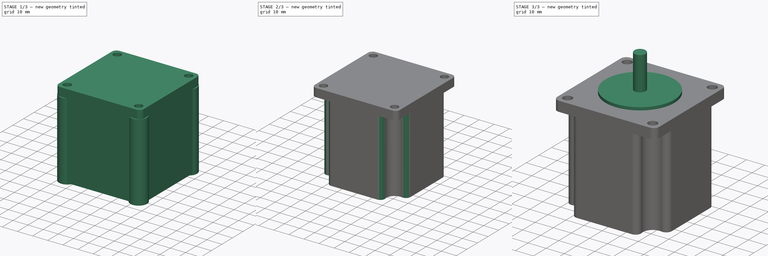
[diagram: build sequence overview — one tinted view per stage of 3, left to right]
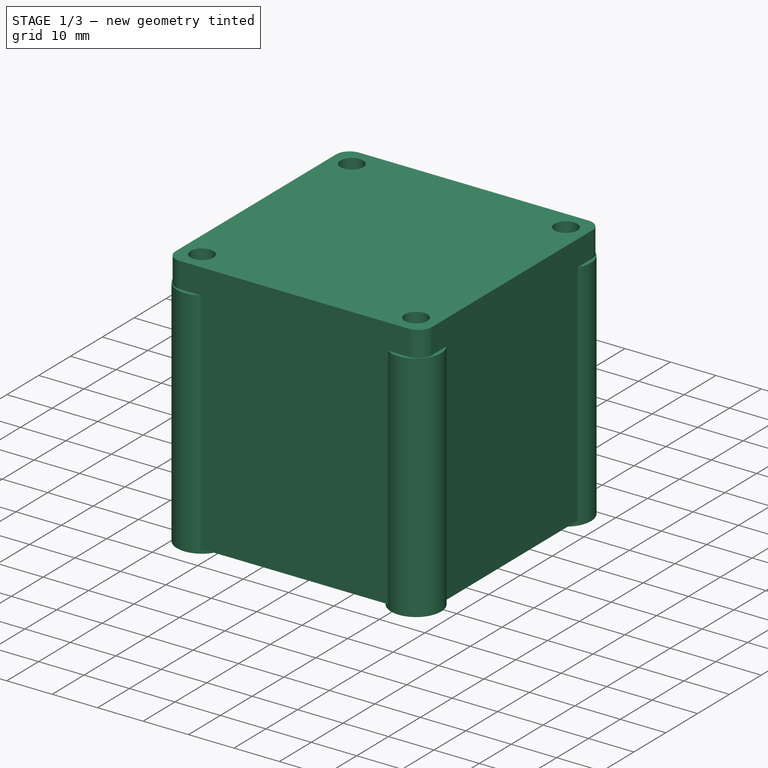
[diagram: stage 1 of 3 — iso view after this stage's code; geometry added in this stage tinted green]
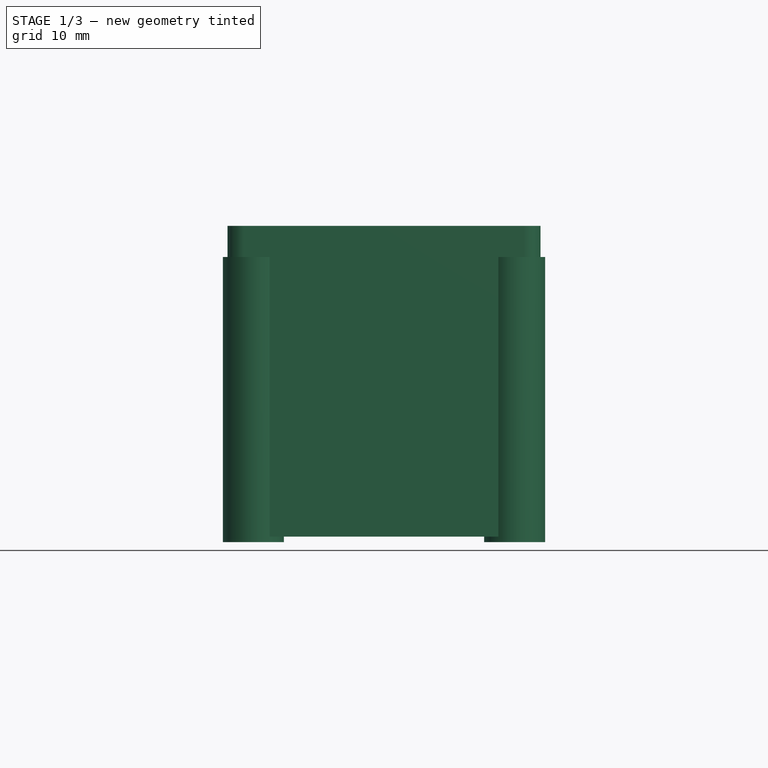
[diagram: stage 1 of 3 — front view after this stage's code; geometry added in this stage tinted green]
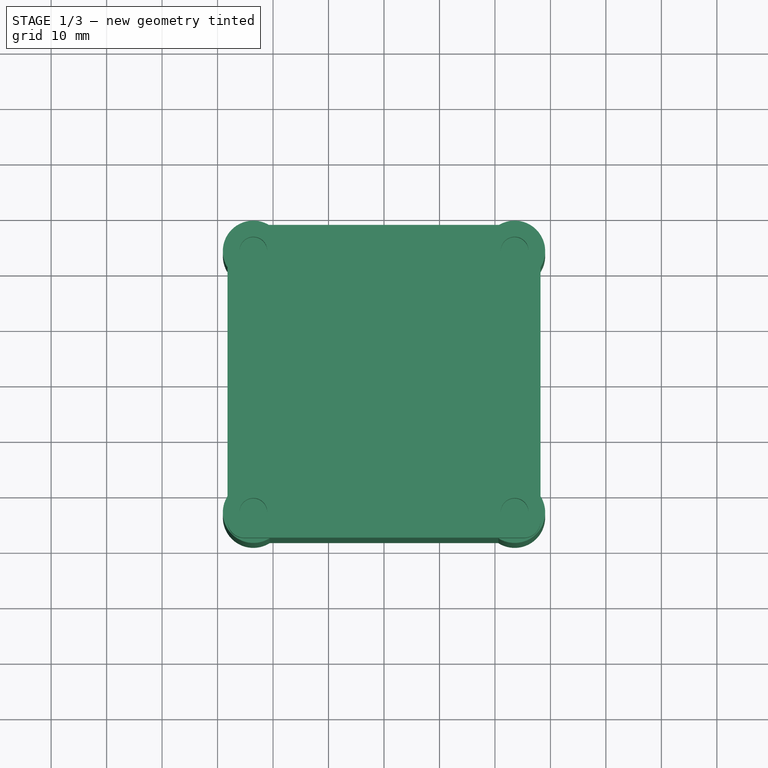
[diagram: stage 1 of 3 — top view after this stage's code; geometry added in this stage tinted green]
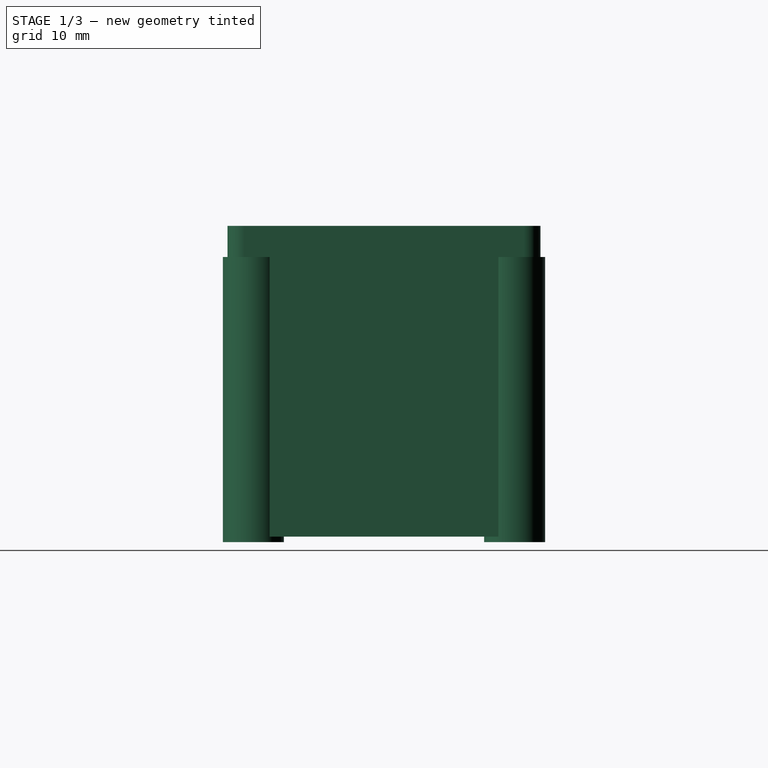
[diagram: stage 1 of 3 — right view after this stage's code; geometry added in this stage tinted green]
FCSTD DOCUMENT  (FreeCAD 0.15R4671 (Git))
Label: motor
License: All rights reserved
LicenseURL: http://en.wikipedia.org/wiki/All_rights_reserved
objects: Sketcher::SketchObject×6, PartDesign::Pad×4, PartDesign::Fillet×2, PartDesign::Pocket×1, Part::Cut×1
note: 19 computed .brp shape members not serialized (recipe doc carries the construction recipe); baked Part::Feature solids carry a one-line shape summary decoded from their .brp

FEATURE [Sketcher::SketchObject] Sketch
  sketch-geometry (8):
    g0: LineSegment StartX=-25.2 StartY=28.2 StartZ=0 EndX=25.2 EndY=28.2 EndZ=0
    g1: LineSegment StartX=28.2 StartY=25.2 StartZ=0 EndX=28.2 EndY=-25.2 EndZ=0
    g2: LineSegment StartX=25.2 StartY=-28.2 StartZ=0 EndX=-25.2 EndY=-28.2 EndZ=0
    g3: LineSegment StartX=-28.2 StartY=-25.2 StartZ=0 EndX=-28.2 EndY=25.2 EndZ=0
    g4: ArcOfCircle CenterX=25.2 CenterY=25.2 CenterZ=0 NormalX=0 NormalY=0 NormalZ=1 Radius=3 StartAngle=0 EndAngle=1.5708
    g5: ArcOfCircle CenterX=-25.2 CenterY=25.2 CenterZ=0 NormalX=0 NormalY=0 NormalZ=1 Radius=3 StartAngle=1.5708 EndAngle=3.14159
    g6: ArcOfCircle CenterX=25.2 CenterY=-25.2 CenterZ=0 NormalX=0 NormalY=0 NormalZ=1 Radius=3 StartAngle=4.71239 EndAngle=6.28319
    g7: ArcOfCircle CenterX=-25.2 CenterY=-25.2 CenterZ=0 NormalX=0 NormalY=0 NormalZ=1 Radius=3 StartAngle=3.14159 EndAngle=4.71239
  constraints (19):
    c: Horizontal(g0)
    c: Horizontal(g2)
    c: Vertical(g1)
    c: Tangent(g0,g4) = 1.5708
    c: Tangent(g1,g4) = 1.5708
    c: Radius(g4) = 3
    c: Tangent(g0,g5) = 1.5708
    c: Tangent(g3,g5) = 1.5708
    c: Tangent(g1,g6) = 1.5708
    c: Tangent(g2,g6) = 1.5708
    c: Tangent(g3,g7) = 1.5708
    c: Tangent(g2,g7) = 1.5708
    c: Equal(g5,g7)
    c: Equal(g7,g6)
    c: Equal(g6,g4)
    c: DistanceY(g0,g2) = -56.4
    c: DistanceX(g3,g1) = 56.4
    c: Symmetric(g3,g1,g-2)
    c: Symmetric(g0,g2,g-1)
FEATURE [PartDesign::Pad] Pad
  Length = 56
  Length2 = 100
  Sketch = -> Sketch
  Type = 0
FEATURE [Sketcher::SketchObject] Sketch001
  Placement = pos=(0,0,56) rot=(0,0,1;0rad)
  Support = -> Pad [Face10]
FEATURE [Sketcher::SketchObject] Sketch002
  Placement = pos=(0,0,56) rot=(0,0,1;0rad)
  Support = -> Pad [Face10]
  sketch-geometry (4):
    g0: Circle CenterX=-23.55 CenterY=23.55 CenterZ=0 NormalX=0 NormalY=0 NormalZ=1 Radius=2.5
    g1: Circle CenterX=-23.55 CenterY=-23.55 CenterZ=0 NormalX=0 NormalY=0 NormalZ=1 Radius=2.5
    g2: Circle CenterX=23.55 CenterY=23.55 CenterZ=0 NormalX=0 NormalY=0 NormalZ=1 Radius=2.5
    g3: Circle CenterX=23.55 CenterY=-23.55 CenterZ=0 NormalX=0 NormalY=0 NormalZ=1 Radius=2.5
  constraints (9):
    c: Radius(g0) = 2.5
    c: Equal(g0,g2)
    c: Equal(g2,g3)
    c: Equal(g3,g1)
    c: Symmetric(g2,g0,g-2)
    c: Symmetric(g3,g1,g-2)
    c: Symmetric(g3,g2,g-1)
    c: DistanceX(g0,g2) = 47.1
    c: DistanceY(g2,g3) = -47.1
FEATURE [PartDesign::Pocket] Pocket
  Length = 6
  Sketch = -> Sketch002
  Type = 0
FEATURE [Sketcher::SketchObject] Sketch003
  Placement = pos=(0,0,-1) rot=(0,0,1;0rad)
  sketch-geometry (4):
    g0: Circle CenterX=-23.55 CenterY=23.55 CenterZ=0 NormalX=0 NormalY=0 NormalZ=1 Radius=5.5
    g1: Circle CenterX=-23.55 CenterY=-23.55 CenterZ=0 NormalX=0 NormalY=0 NormalZ=1 Radius=5.5
    g2: Circle CenterX=23.55 CenterY=23.55 CenterZ=0 NormalX=0 NormalY=0 NormalZ=1 Radius=5.5
    g3: Circle CenterX=23.55 CenterY=-23.55 CenterZ=0 NormalX=0 NormalY=0 NormalZ=1 Radius=5.5
  constraints (9):
    c: Radius(g0) = 5.5
    c: Equal(g0,g2)
    c: Equal(g2,g3)
    c: Equal(g3,g1)
    c: Symmetric(g2,g0,g-2)
    c: Symmetric(g3,g1,g-2)
    c: Symmetric(g3,g2,g-1)
    c: DistanceX(g0,g2) = 47.1
    c: DistanceY(g2,g3) = -47.1
FEATURE [PartDesign::Pad] Pad001
  Length = 51.4
  Length2 = 100
  Placement = pos=(0,0,-1) rot=(0,0,1;0rad)
  Sketch = -> Sketch003
  Type = 0
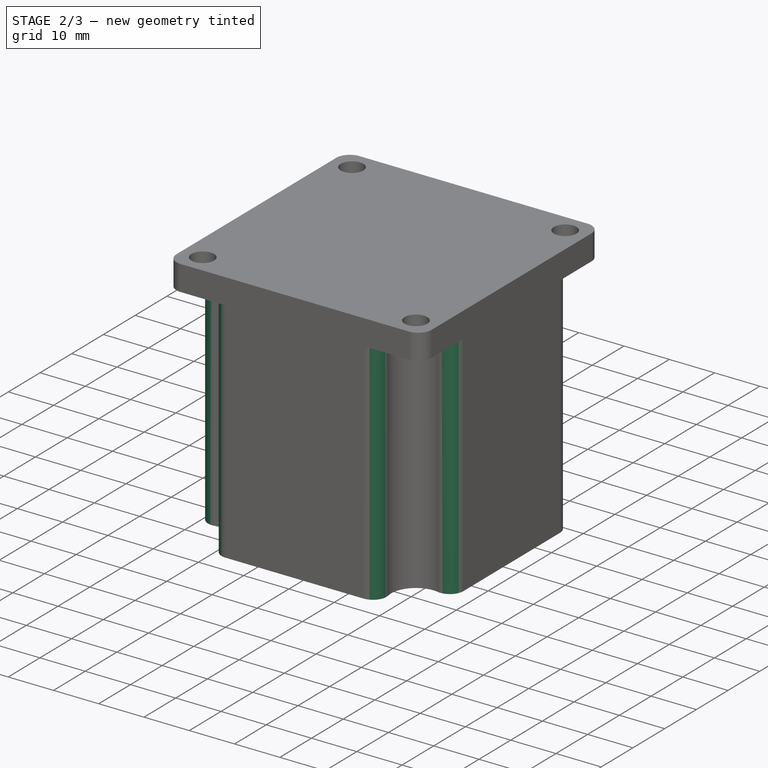
[diagram: stage 2 of 3 — iso view after this stage's code; geometry added in this stage tinted green]
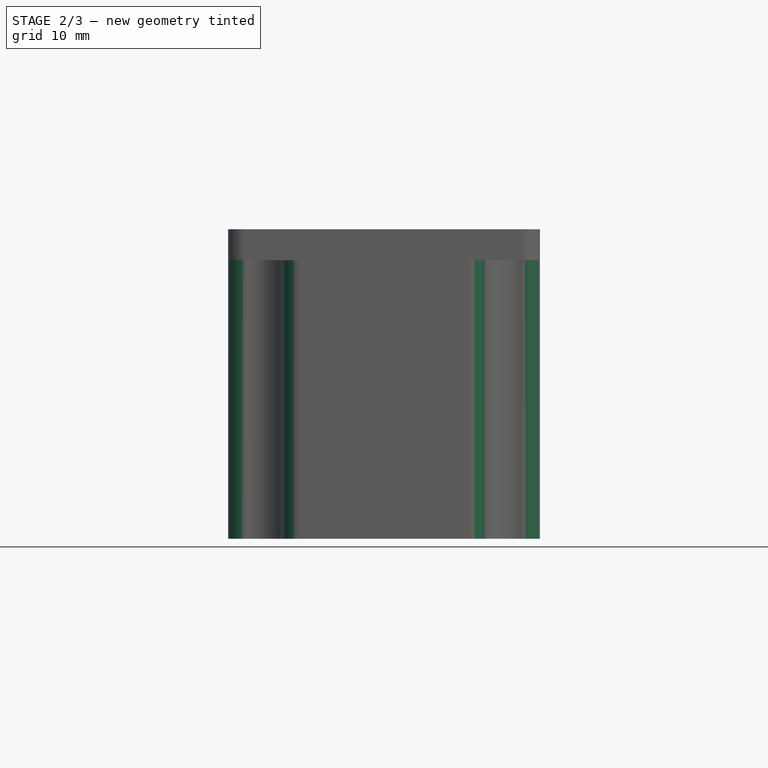
[diagram: stage 2 of 3 — front view after this stage's code; geometry added in this stage tinted green]
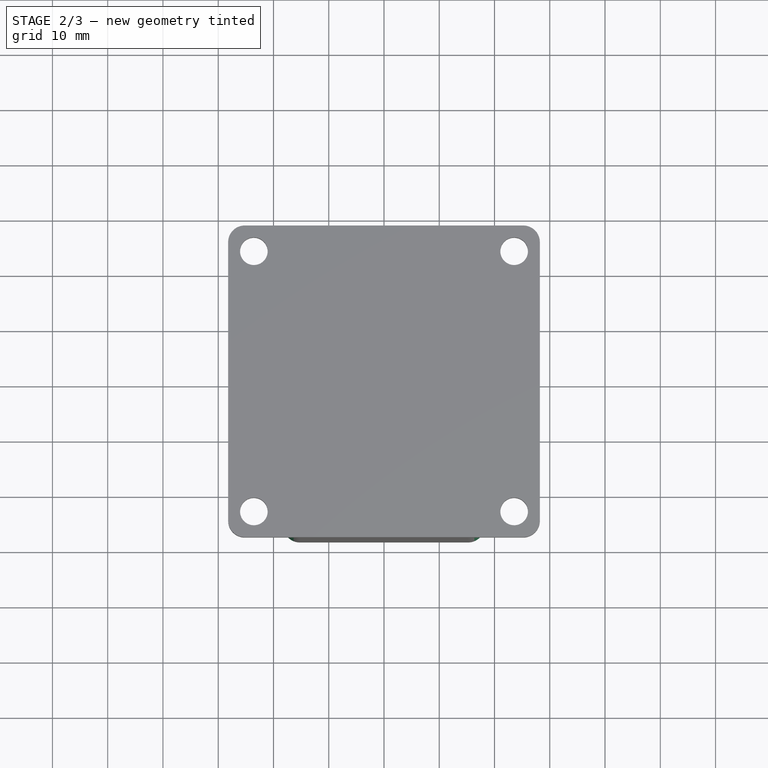
[diagram: stage 2 of 3 — top view after this stage's code; geometry added in this stage tinted green]
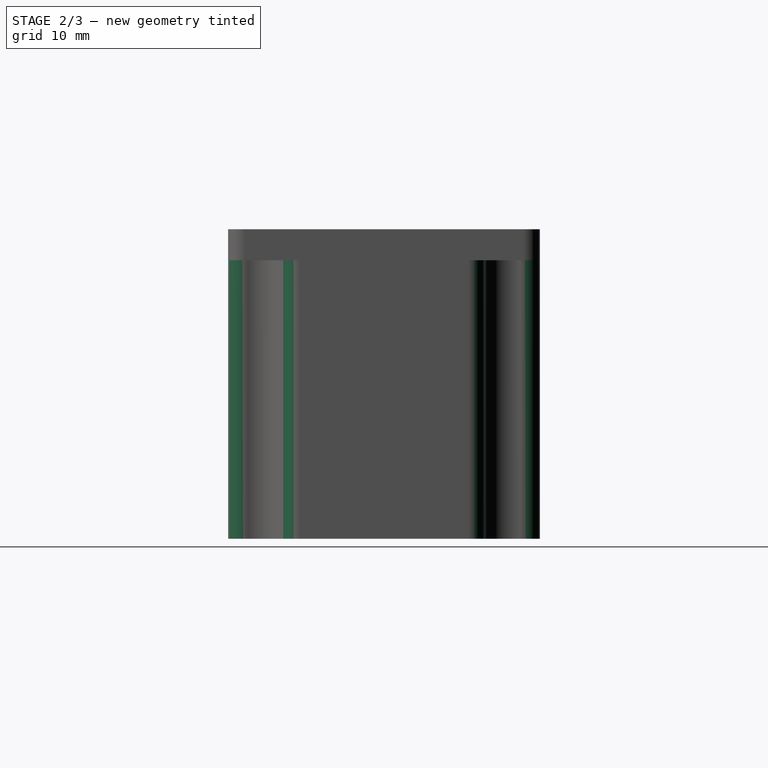
[diagram: stage 2 of 3 — right view after this stage's code; geometry added in this stage tinted green]
FEATURE [Part::Cut] Cut
  Base = -> Pocket
  Tool = -> Pad001
FEATURE [PartDesign::Fillet] Fillet
  Base = -> Cut [Edge53,Edge43,Edge44,Edge2,Edge4,Edge24,Edge47,Edge50]
  Radius = 3
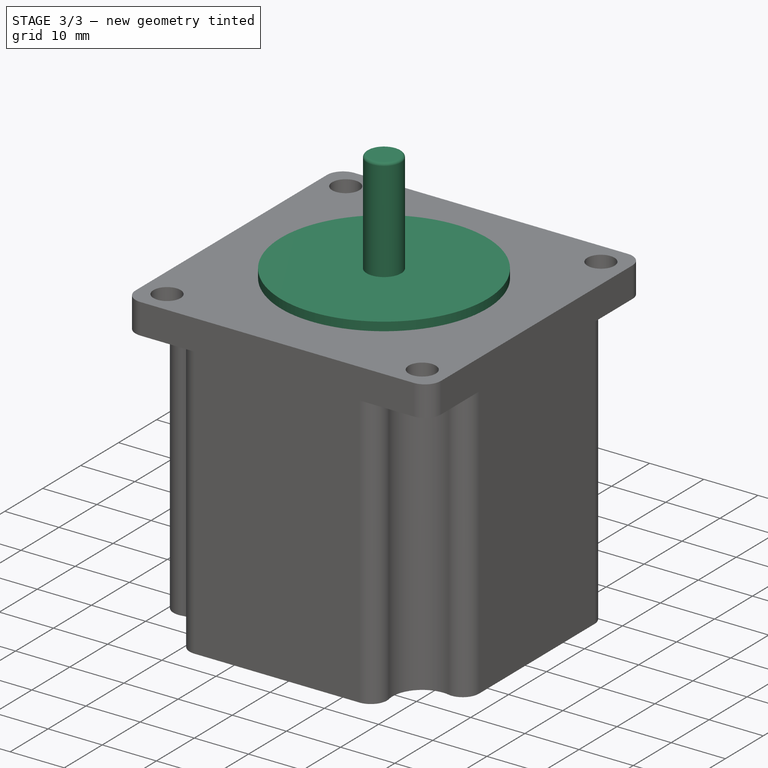
[diagram: stage 3 of 3 — iso view after this stage's code; geometry added in this stage tinted green]
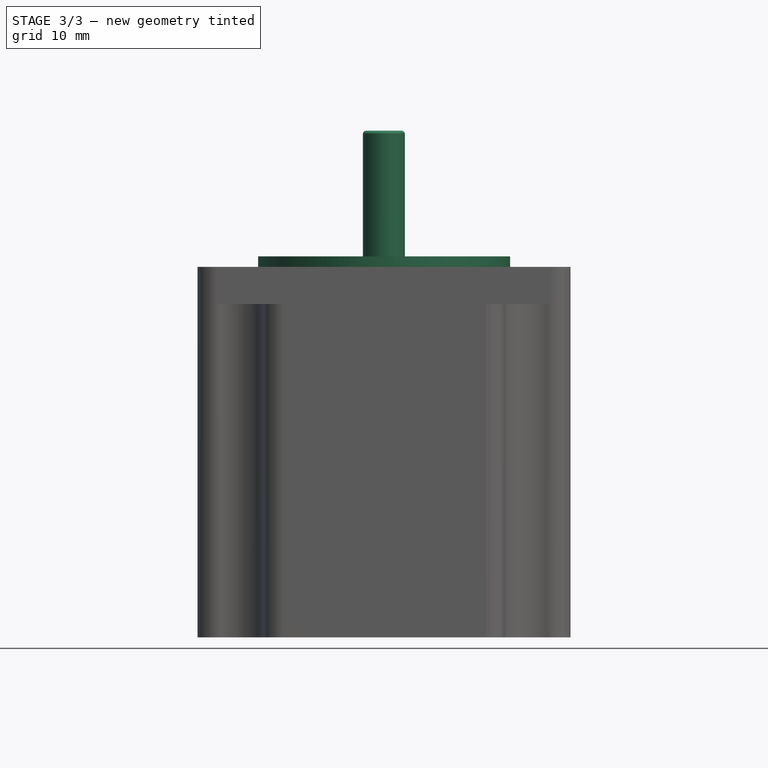
[diagram: stage 3 of 3 — front view after this stage's code; geometry added in this stage tinted green]
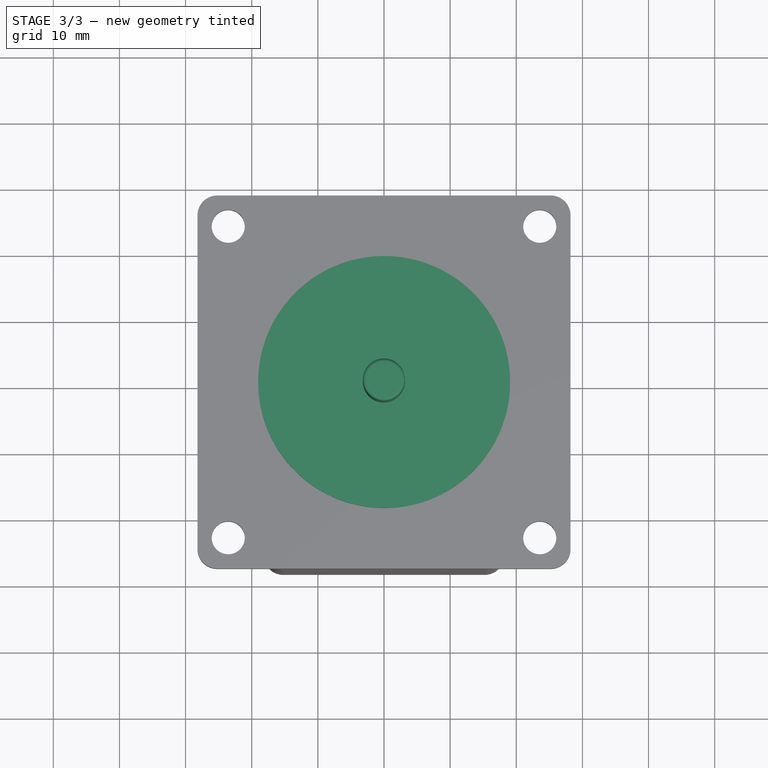
[diagram: stage 3 of 3 — top view after this stage's code; geometry added in this stage tinted green]
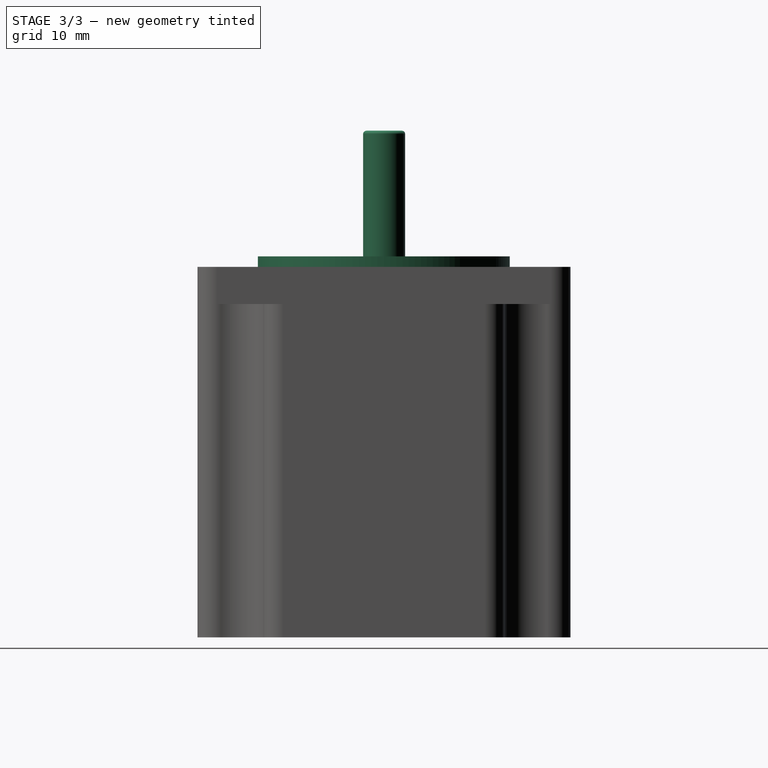
[diagram: stage 3 of 3 — right view after this stage's code; geometry added in this stage tinted green]
FEATURE [Sketcher::SketchObject] Sketch004
  Placement = pos=(0,0,56) rot=(0,0,1;0rad)
  Support = -> Fillet [Face9]
  sketch-geometry (1):
    g0: Circle CenterX=0.021046 CenterY=-0.026368 CenterZ=0 NormalX=0 NormalY=0 NormalZ=1 Radius=19.05
  constraints (1):
    c: Radius(g0) = 19.05
FEATURE [PartDesign::Pad] Pad002
  Length = 1.6
  Length2 = 100
  Sketch = -> Sketch004
  Type = 0
FEATURE [Sketcher::SketchObject] Sketch005
  Placement = pos=(0,0,57.6) rot=(0,0,1;0rad)
  Support = -> Pad002 [Face1]
  sketch-geometry (1):
    g0: Circle CenterX=-0.017815 CenterY=0.022992 CenterZ=0 NormalX=0 NormalY=0 NormalZ=1 Radius=3.175
  constraints (1):
    c: Radius(g0) = 3.175
FEATURE [PartDesign::Pad] Pad003
  Length = 19
  Length2 = 100
  Sketch = -> Sketch005
  Type = 0
FEATURE [PartDesign::Fillet] Fillet001
  Base = -> Pad003 [Edge66]
  Radius = 0.5
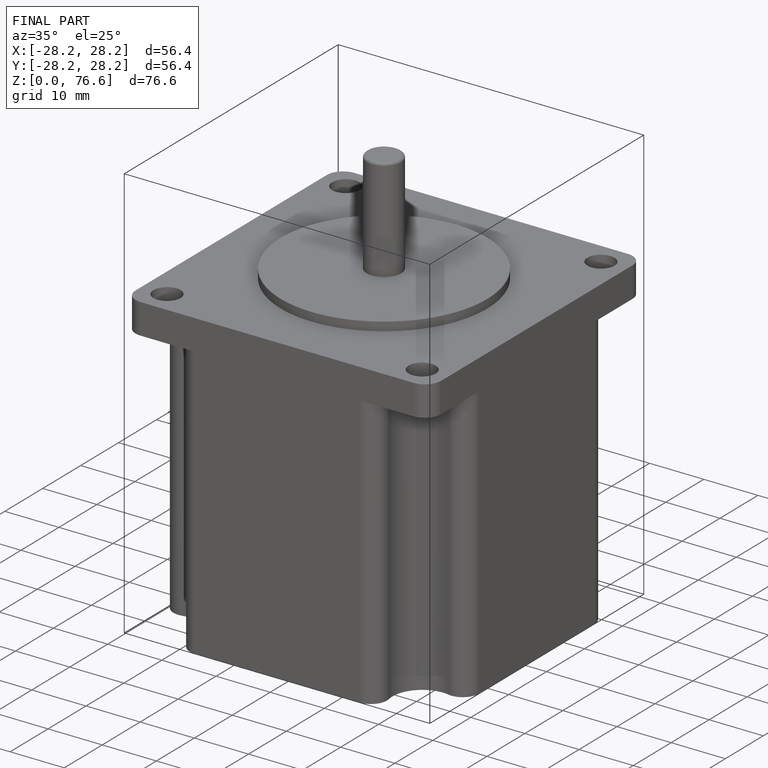
[diagram: finished part — iso view with bounding-box wireframe]
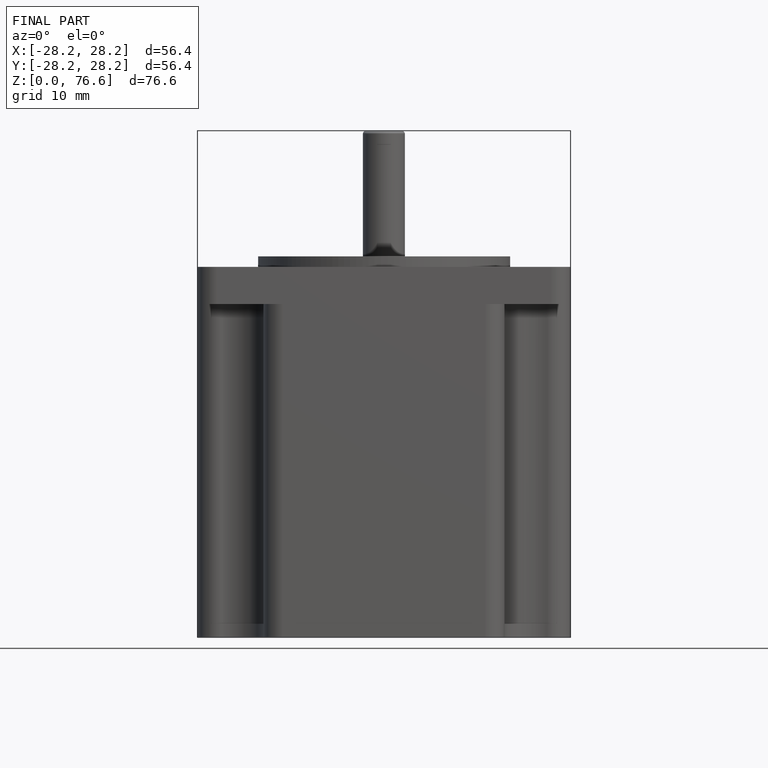
[diagram: finished part — front view with bounding-box wireframe]
